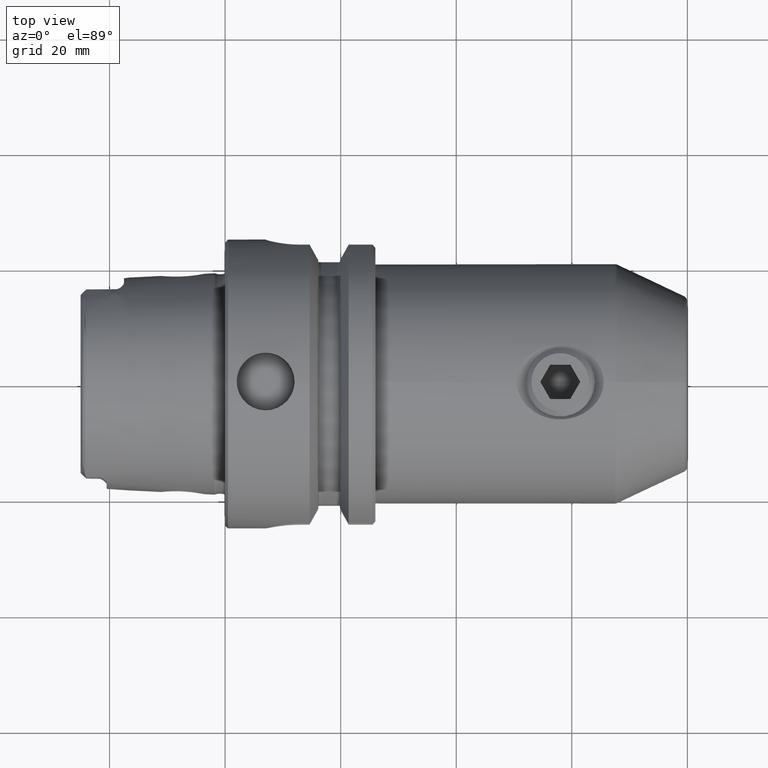
[diagram: clean part render]
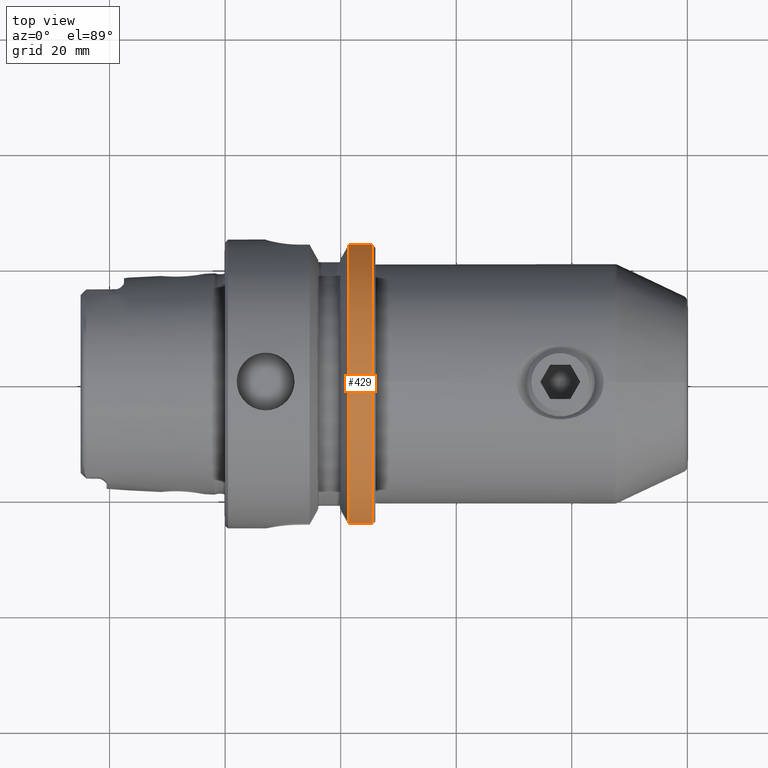
[diagram: same view with one face highlighted and labeled with its STEP entity id]
A machine part, top view. The second image highlights one B-rep face of the part: STEP entity #429.
In plain terms, the highlighted cylindrical surface (partial cylindrical patch) has radius 25 mm, axis along (1, -0, -0).
Its self-contained STEP definition (entity closure, byte-faithful):
#429 = ADVANCED_FACE( '', ( #928 ), #929, .T. );
#928 = FACE_OUTER_BOUND( '', #1455, .T. );
#929 = CYLINDRICAL_SURFACE( '', #1456, 25.0000000000000 );
#1455 = EDGE_LOOP( '', ( #2586, #2587, #2588, #2589 ) );
#1456 = AXIS2_PLACEMENT_3D( '', #2590, #2591, #2592 );
#2586 = ORIENTED_EDGE( '', *, *, #3022, .T. );
#2587 = ORIENTED_EDGE( '', *, *, #3126, .T. );
#2588 = ORIENTED_EDGE( '', *, *, #3102, .F. );
#2589 = ORIENTED_EDGE( '', *, *, #3038, .F. );
#2590 = CARTESIAN_POINT( '', ( -60.0000000000000, 0.000000000000000, 0.000000000000000 ) );
#2591 = DIRECTION( '', ( 1.00000000000000, -0.000000000000000, -0.000000000000000 ) );
#2592 = DIRECTION( '', ( 0.000000000000000, 0.000000000000000, 1.00000000000000 ) );
#3022 = EDGE_CURVE( '', #3653, #3650, #3654, .F. );
#3038 = EDGE_CURVE( '', #3653, #3678, #3679, .T. );
#3102 = EDGE_CURVE( '', #3678, #3770, #3771, .F. );
#3126 = EDGE_CURVE( '', #3650, #3770, #3801, .T. );
#3650 = VERTEX_POINT( '', #5234 );
#3653 = VERTEX_POINT( '', #5240 );
#3654 = LINE( '', #5241, #5242 );
#3678 = VERTEX_POINT( '', #5302 );
#3679 = CIRCLE( '', #5303, 25.0000000000000 );
#3770 = VERTEX_POINT( '', #5538 );
#3771 = LINE( '', #5539, #5540 );
#3801 = CIRCLE( '', #5590, 25.0000000000000 );
#5234 = CARTESIAN_POINT( '', ( 25.5000000000000, -24.2693221990232, 6.00000000000000 ) );
#5240 = CARTESIAN_POINT( '', ( 21.3774990747593, -24.2693221990232, 6.00000000000000 ) );
#5241 = CARTESIAN_POINT( '', ( -60.0000000000000, -24.2693221990232, 6.00000000000000 ) );
#5242 = VECTOR( '', #6308, 1000.00000000000 );
#5302 = CARTESIAN_POINT( '', ( 21.3774990747593, 24.0000000000000, 7.00000000000000 ) );
#5303 = AXIS2_PLACEMENT_3D( '', #6323, #6324, #6325 );
#5538 = CARTESIAN_POINT( '', ( 25.5000000000000, 24.0000000000000, 7.00000000000000 ) );
#5539 = CARTESIAN_POINT( '', ( -60.0000000000000, 24.0000000000000, 7.00000000000000 ) );
#5540 = VECTOR( '', #6399, 1000.00000000000 );
#5590 = AXIS2_PLACEMENT_3D( '', #6423, #6424, #6425 );
#6308 = DIRECTION( '', ( -1.00000000000000, 0.000000000000000, 0.000000000000000 ) );
#6323 = CARTESIAN_POINT( '', ( 21.3774990747593, 0.000000000000000, 0.000000000000000 ) );
#6324 = DIRECTION( '', ( -1.00000000000000, 0.000000000000000, 0.000000000000000 ) );
#6325 = DIRECTION( '', ( 0.000000000000000, 0.000000000000000, 1.00000000000000 ) );
#6399 = DIRECTION( '', ( -1.00000000000000, 0.000000000000000, 0.000000000000000 ) );
#6423 = CARTESIAN_POINT( '', ( 25.5000000000000, 0.000000000000000, 0.000000000000000 ) );
#6424 = DIRECTION( '', ( -1.00000000000000, 0.000000000000000, 0.000000000000000 ) );
#6425 = DIRECTION( '', ( 0.000000000000000, 0.000000000000000, 1.00000000000000 ) );